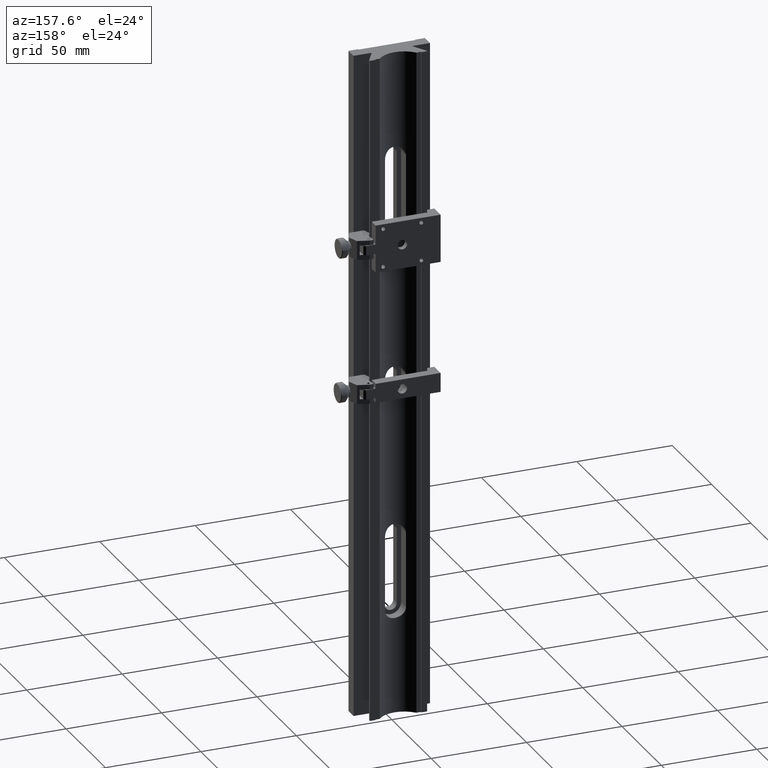
[diagram: clean part render]
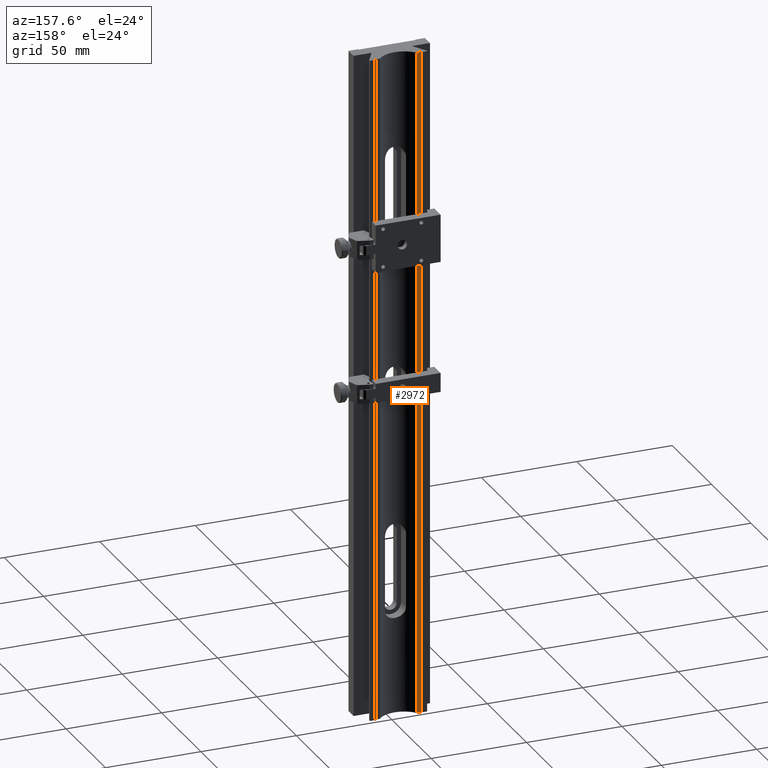
[diagram: same view with one face highlighted and labeled with its STEP entity id]
A machine part, auxiliary view. The second image highlights one B-rep face of the part: STEP entity #2972.
In plain terms, the highlighted planar face has unit normal (-0, 1, 0).
Its self-contained STEP definition (entity closure, byte-faithful):
#110 = ORIENTED_EDGE ( 'NONE', *, *, #179, .T. ) ;
#179 = EDGE_CURVE ( 'NONE', #1857, #5928, #5267, .T. ) ;
#527 = DIRECTION ( 'NONE',  ( -1.000000000000000000, -1.445602896647339163E-16, 0.000000000000000000 ) ) ;
#798 = LINE ( 'NONE', #2478, #3037 ) ;
#923 = EDGE_CURVE ( 'NONE', #5928, #4596, #1919, .T. ) ;
#1022 = ORIENTED_EDGE ( 'NONE', *, *, #1055, .T. ) ;
#1055 = EDGE_CURVE ( 'NONE', #4596, #6013, #798, .T. ) ;
#1133 = DIRECTION ( 'NONE',  ( -1.000000000000000000, -1.445602896647339163E-16, 0.000000000000000000 ) ) ;
#1136 = CARTESIAN_POINT ( 'NONE',  ( -12.00000000000002665, 7.999999999999998224, -175.0000000000000000 ) ) ;
#1413 = CARTESIAN_POINT ( 'NONE',  ( 9.157674552523589243E-16, 8.000000000000000000, -175.0000000000000000 ) ) ;
#1532 = CARTESIAN_POINT ( 'NONE',  ( -9.604686356149272797, 7.999999999999998224, 175.0000000000000000 ) ) ;
#1705 = DIRECTION ( 'NONE',  ( -1.445602896647339163E-16, 1.000000000000000000, 1.766128869543160699E-32 ) ) ;
#1733 = CARTESIAN_POINT ( 'NONE',  ( -1.123668541772420414E-15, 8.000000000000000000, 1.501209539111686635E-31 ) ) ;
#1857 = VERTEX_POINT ( 'NONE', #1985 ) ;
#1919 = LINE ( 'NONE', #1413, #4977 ) ;
#1985 = CARTESIAN_POINT ( 'NONE',  ( -9.604686356149272797, 7.999999999999998224, 175.0000000000000000 ) ) ;
#2267 = PLANE ( 'NONE',  #2354 ) ;
#2354 = AXIS2_PLACEMENT_3D ( 'NONE', #1733, #1705, #1133 ) ;
#2478 = CARTESIAN_POINT ( 'NONE',  ( -11.99999999999997158, 7.999999999999998224, 283.9794224532299154 ) ) ;
#2554 = EDGE_LOOP ( 'NONE', ( #110, #6276, #1022, #3427 ) ) ;
#2966 = DIRECTION ( 'NONE',  ( -0.000000000000000000, 0.000000000000000000, -1.000000000000000000 ) ) ;
#2972 = ADVANCED_FACE ( 'NONE', ( #4297 ), #2267, .T. ) ;
#3037 = VECTOR ( 'NONE', #4753, 1000.000000000000000 ) ;
#3427 = ORIENTED_EDGE ( 'NONE', *, *, #4440, .F. ) ;
#3692 = LINE ( 'NONE', #5832, #6794 ) ;
#4151 = DIRECTION ( 'NONE',  ( -1.000000000000000000, -1.445602896647339163E-16, 0.000000000000000000 ) ) ;
#4297 = FACE_OUTER_BOUND ( 'NONE', #2554, .T. ) ;
#4436 = CARTESIAN_POINT ( 'NONE',  ( -9.604686356149272797, 7.999999999999998224, -175.0000000000000000 ) ) ;
#4440 = EDGE_CURVE ( 'NONE', #1857, #6013, #3692, .T. ) ;
#4596 = VERTEX_POINT ( 'NONE', #1136 ) ;
#4753 = DIRECTION ( 'NONE',  ( 1.221724772161974472E-16, 0.000000000000000000, 1.000000000000000000 ) ) ;
#4819 = VECTOR ( 'NONE', #2966, 1000.000000000000000 ) ;
#4977 = VECTOR ( 'NONE', #4151, 1000.000000000000000 ) ;
#5267 = LINE ( 'NONE', #1532, #4819 ) ;
#5832 = CARTESIAN_POINT ( 'NONE',  ( 9.157674552523589243E-16, 8.000000000000000000, 175.0000000000000000 ) ) ;
#5928 = VERTEX_POINT ( 'NONE', #4436 ) ;
#6013 = VERTEX_POINT ( 'NONE', #6201 ) ;
#6201 = CARTESIAN_POINT ( 'NONE',  ( -11.99999999999998401, 7.999999999999998224, 175.0000000000000000 ) ) ;
#6276 = ORIENTED_EDGE ( 'NONE', *, *, #923, .T. ) ;
#6794 = VECTOR ( 'NONE', #527, 1000.000000000000000 ) ;